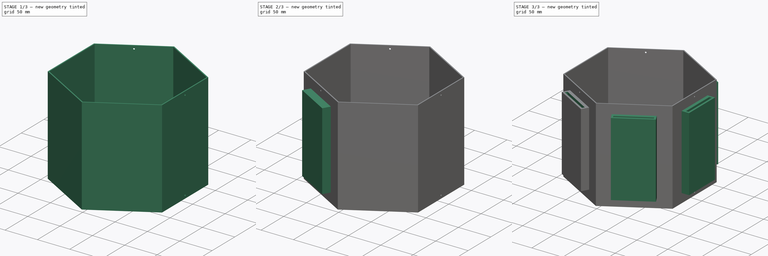
[diagram: build sequence overview — one tinted view per stage of 3, left to right]
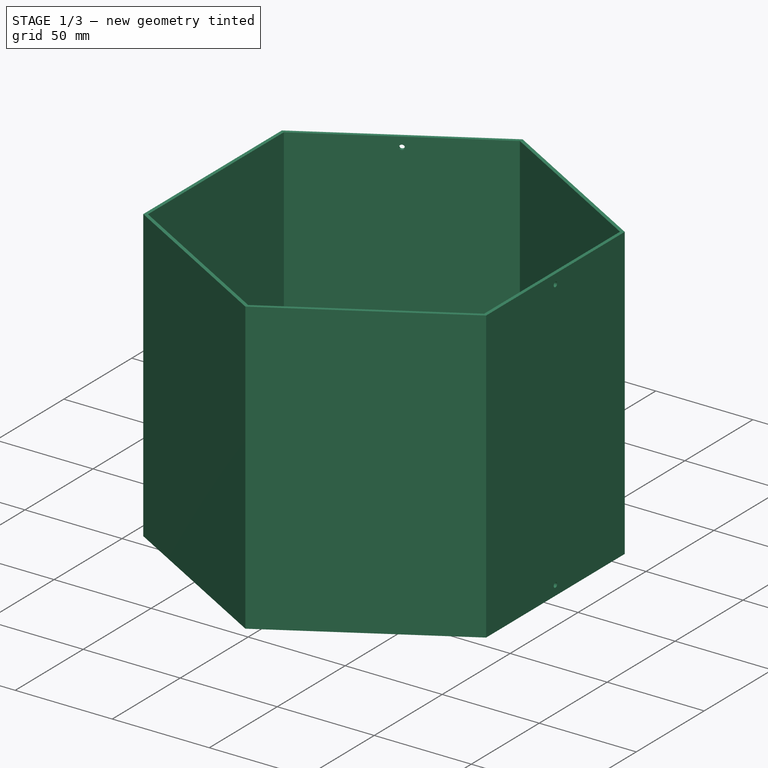
[diagram: stage 1 of 3 — iso view after this stage's code; geometry added in this stage tinted green]
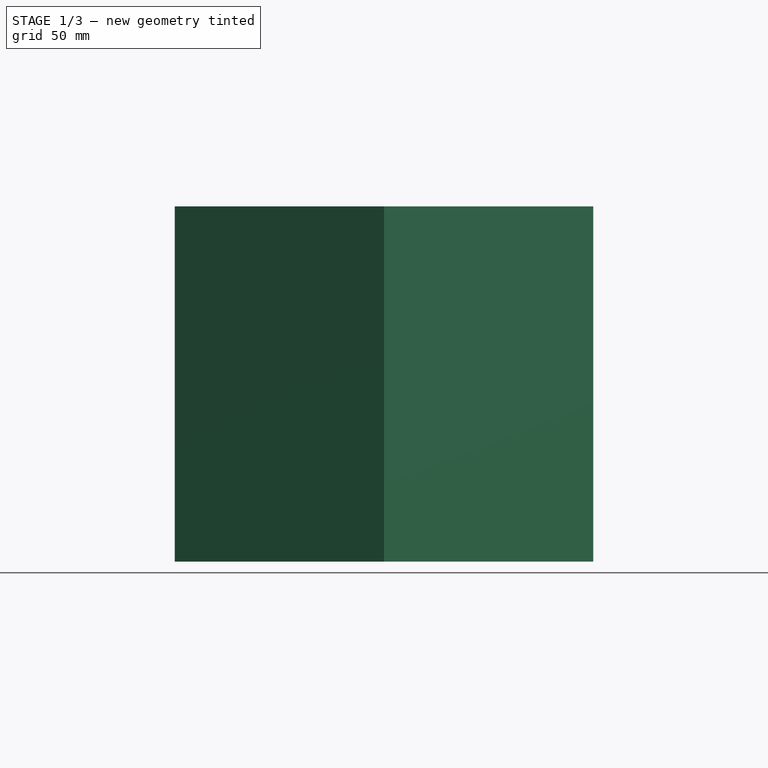
[diagram: stage 1 of 3 — front view after this stage's code; geometry added in this stage tinted green]
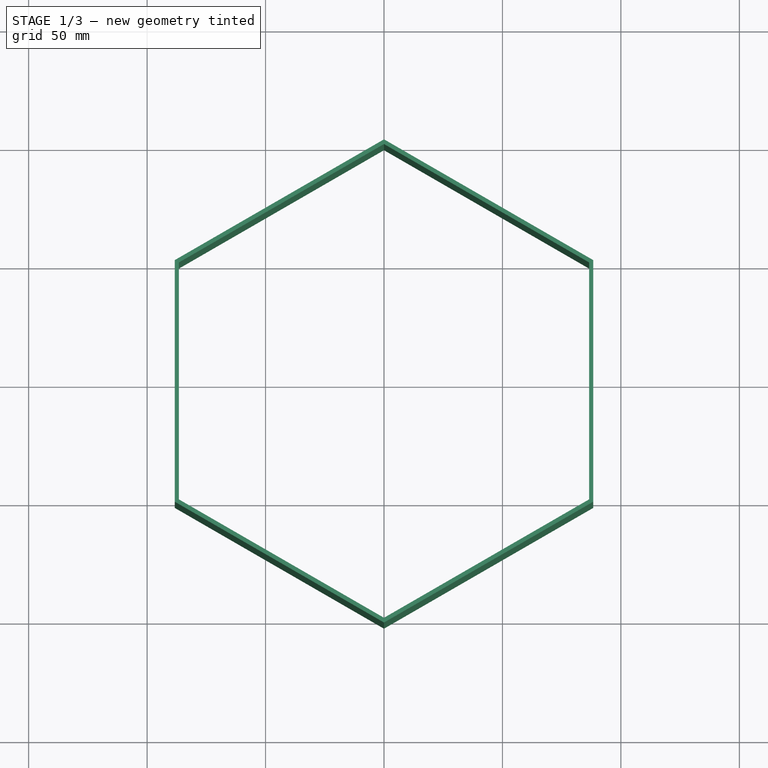
[diagram: stage 1 of 3 — top view after this stage's code; geometry added in this stage tinted green]
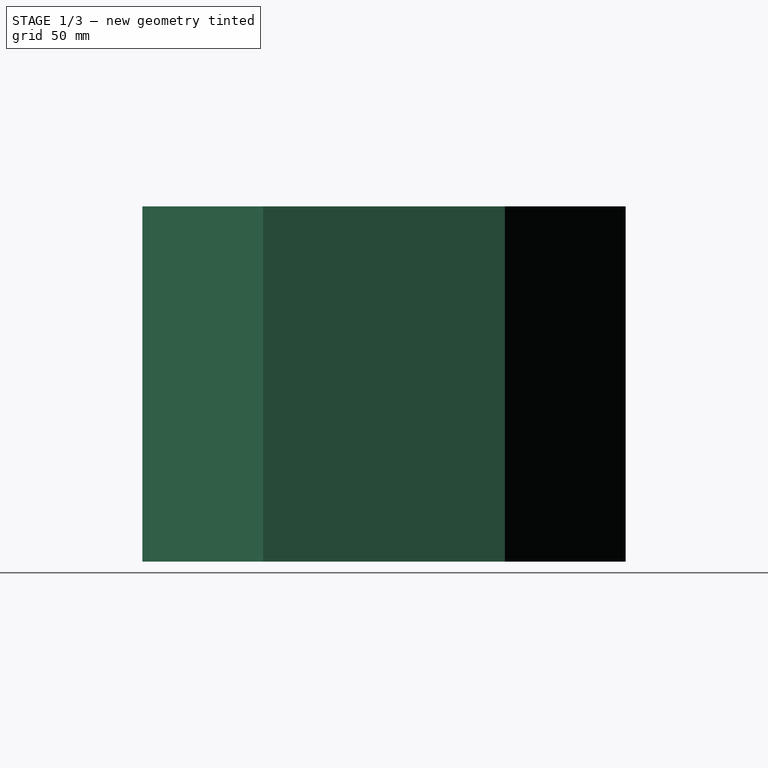
[diagram: stage 1 of 3 — right view after this stage's code; geometry added in this stage tinted green]
FCSTD DOCUMENT  (FreeCAD 0.20R29177 +426 (Git))
Label: classifier_middle
License: All rights reserved
LicenseURL: http://en.wikipedia.org/wiki/All_rights_reserved
objects: Sketcher::SketchObject×6, PartDesign::Hole×3, PartDesign::Pad×2, PartDesign::PolarPattern×2, App::MeasureDistance×1, PartDesign::Pocket×1, PartDesign::Body×1
note: 21 computed .brp shape members not serialized (recipe doc carries the construction recipe); baked Part::Feature solids carry a one-line shape summary decoded from their .brp

FEATURE [Sketcher::SketchObject] Sketch007
  FullyConstrained = true
  MapMode = 5
  sketch-geometry (14):
    g0: LineSegment StartX=86.6025 StartY=50 StartZ=0 EndX=-1.42e-14 EndY=100 EndZ=0
    g1: LineSegment StartX=-1.42e-14 StartY=100 StartZ=0 EndX=-86.6025 EndY=50 EndZ=0
    g2: LineSegment StartX=-86.6025 StartY=50 StartZ=0 EndX=-86.6025 EndY=-50 EndZ=0
    g3: LineSegment StartX=-86.6025 StartY=-50 StartZ=0 EndX=0 EndY=-100 EndZ=0
    g4: LineSegment StartX=0 StartY=-100 StartZ=0 EndX=86.6025 EndY=-50 EndZ=0
    g5: LineSegment StartX=86.6025 StartY=-50 StartZ=0 EndX=86.6025 EndY=50 EndZ=0
    g6: Circle CenterX=0 CenterY=0 CenterZ=0 NormalX=0 NormalY=0 NormalZ=1 AngleXU=0 Radius=100
    g7: LineSegment StartX=88.3346 StartY=51 StartZ=0 EndX=0 EndY=102 EndZ=0
    g8: LineSegment StartX=0 StartY=102 StartZ=0 EndX=-88.3346 EndY=51 EndZ=0
    g9: LineSegment StartX=-88.3346 StartY=51 StartZ=0 EndX=-88.3346 EndY=-51 EndZ=0
    g10: LineSegment StartX=-88.3346 StartY=-51 StartZ=0 EndX=0 EndY=-102 EndZ=0
    g11: LineSegment StartX=0 StartY=-102 StartZ=0 EndX=88.3346 EndY=-51 EndZ=0
    g12: LineSegment StartX=88.3346 StartY=-51 StartZ=0 EndX=88.3346 EndY=51 EndZ=0
    g13: Circle CenterX=0 CenterY=0 CenterZ=0 NormalX=0 NormalY=0 NormalZ=1 AngleXU=0 Radius=102
  constraints (32):
    c: Coincident(g0,g1)
    c: Coincident(g1,g2)
    c: Coincident(g2,g3)
    c: Coincident(g3,g4)
    c: Coincident(g4,g5)
    c: Coincident(g5,g0)
    c: Equal(g0, g1-g5) x5
    c: PointOnObject(g0,g6)
    c: PointOnObject(g1,g6)
    c: PointOnObject(g2,g6)
    c: PointOnObject(g3,g6)
    c: PointOnObject(g4,g6)
    c: PointOnObject(g5,g6)
    c: Coincident(g6,g-1)
    c: PointOnObject(g3,g-2)
    c: DistanceY(g5,g5) = 100
    c: Coincident(g7,g8)
    c: Coincident(g8,g9)
    c: Coincident(g9,g10)
    c: Coincident(g10,g11)
    c: Coincident(g11,g12)
    c: Coincident(g12,g7)
    c: Equal(g7, g8-g12) x5
    c: PointOnObject(g7,g13)
    c: PointOnObject(g8,g13)
    c: PointOnObject(g9,g13)
    c: PointOnObject(g10,g13)
    c: PointOnObject(g11,g13)
    c: PointOnObject(g12,g13)
    c: Coincident(g13,g6)
    c: Distance(g0,g7) = 2
    c: PointOnObject(g7,g-2)
FEATURE [PartDesign::Pad] Pad
  Direction = (0,0,1)
  Length = 150
  Length2 = 10
  Profile = -> Sketch007
  ReferenceAxis = -> Sketch007 [N_Axis]
  Type = 0
FEATURE [App::MeasureDistance] Distance  label="Distance: 4,99 mm"
  Distance = 4.98783
  P1 = (-26.0433,-97.0052,135)
  P2 = (-28.7858,-101.171,135)
FEATURE [Sketcher::SketchObject] Sketch
  ExternalGeometry = -> [Pad]
  FullyConstrained = true
  MapMode = 5
  Placement = pos=(88.3346,0,0) rot=(0.57735,0.57735,0.57735;2.0944rad)
  Support = -> [Pad]
  sketch-geometry (3):
    g0: Circle CenterX=0 CenterY=5 CenterZ=0 NormalX=0 NormalY=0 NormalZ=1 AngleXU=0 Radius=3
    g1: Circle CenterX=0 CenterY=145 CenterZ=0 NormalX=0 NormalY=0 NormalZ=1 AngleXU=0 Radius=3
    g2: GeomPoint X=0 Y=150 Z=0
  constraints (8):
    c: PointOnObject(g0,g-2)
    c: Diameter(g0) = 6
    c: DistanceY(g-1,g0) = 5
    c: Equal(g0,g1) = 6
    c: PointOnObject(g1,g-2)
    c: PointOnObject(g2,g-3)
    c: PointOnObject(g2,g-2)
    c: DistanceY(g1,g2) = 5
FEATURE [PartDesign::Hole] Hole
  BaseFeature = -> Pad
  CustomThreadClearance = 0
  Depth = 25
  DepthType = 0
  Diameter = 2.5
  DrillForDepth = false
  DrillPoint = 1
  DrillPointAngle = 118
  HoleCutCountersinkAngle = 90
  HoleCutCustomValues = false
  HoleCutDepth = 0
  HoleCutDiameter = 6.1
  HoleCutType = 0
  ModelThread = false
  Profile = -> Sketch
  Tapered = false
  TaperedAngle = 90
  ThreadClass = 0
  ThreadDepth = 25
  ThreadDepthType = 0
  ThreadDirection = 0
  ThreadFit = 0
  ThreadSize = 9
  ThreadType = 1
  Threaded = true
  UseCustomThreadClearance = false
FEATURE [Sketcher::SketchObject] Sketch009
  ExternalGeometry = -> [Pad]
  FullyConstrained = true
  MapMode = 5
  Placement = pos=(-44.1673,-76.5,0) rot=(0.935113,-0.250563,-0.250563;1.63783rad)
  Support = -> [Hole]
  sketch-geometry (3):
    g0: Circle CenterX=0 CenterY=5 CenterZ=0 NormalX=0 NormalY=0 NormalZ=1 AngleXU=0 Radius=3
    g1: Circle CenterX=0 CenterY=145 CenterZ=0 NormalX=0 NormalY=0 NormalZ=1 AngleXU=0 Radius=3
    g2: GeomPoint X=0 Y=150 Z=0
  constraints (8):
    c: PointOnObject(g0,g-2)
    c: Diameter(g0) = 6
    c: DistanceY(g-1,g0) = 5
    c: Equal(g0,g1) = 6
    c: PointOnObject(g1,g-2)
    c: PointOnObject(g2,g-3)
    c: PointOnObject(g2,g-2)
    c: DistanceY(g1,g2) = 5
FEATURE [Sketcher::SketchObject] Sketch008
  ExternalGeometry = -> [Pad]
  FullyConstrained = true
  MapMode = 5
  Placement = pos=(-44.1673,76.5,0) rot=(-0.186157,0.694747,0.694747;3.50969rad)
  Support = -> [Hole]
  sketch-geometry (3):
    g0: Circle CenterX=0 CenterY=5 CenterZ=0 NormalX=0 NormalY=0 NormalZ=1 AngleXU=0 Radius=3
    g1: Circle CenterX=0 CenterY=145 CenterZ=0 NormalX=0 NormalY=0 NormalZ=1 AngleXU=0 Radius=3
    g2: GeomPoint X=0 Y=150 Z=0
  constraints (8):
    c: PointOnObject(g0,g-2)
    c: Diameter(g0) = 6
    c: DistanceY(g-1,g0) = 5
    c: Equal(g0,g1) = 6
    c: PointOnObject(g1,g-2)
    c: PointOnObject(g2,g-3)
    c: PointOnObject(g2,g-2)
    c: DistanceY(g1,g2) = 5
FEATURE [PartDesign::Hole] Hole001
  BaseFeature = -> Hole
  CustomThreadClearance = 0
  Depth = 25
  DepthType = 0
  Diameter = 2.5
  DrillForDepth = false
  DrillPoint = 1
  DrillPointAngle = 118
  HoleCutCountersinkAngle = 90
  HoleCutCustomValues = false
  HoleCutDepth = 0
  HoleCutDiameter = 6.1
  HoleCutType = 0
  ModelThread = false
  Profile = -> Sketch008
  Tapered = false
  TaperedAngle = 90
  ThreadClass = 0
  ThreadDepth = 25
  ThreadDepthType = 0
  ThreadDirection = 0
  ThreadFit = 0
  ThreadSize = 9
  ThreadType = 1
  Threaded = true
  UseCustomThreadClearance = false
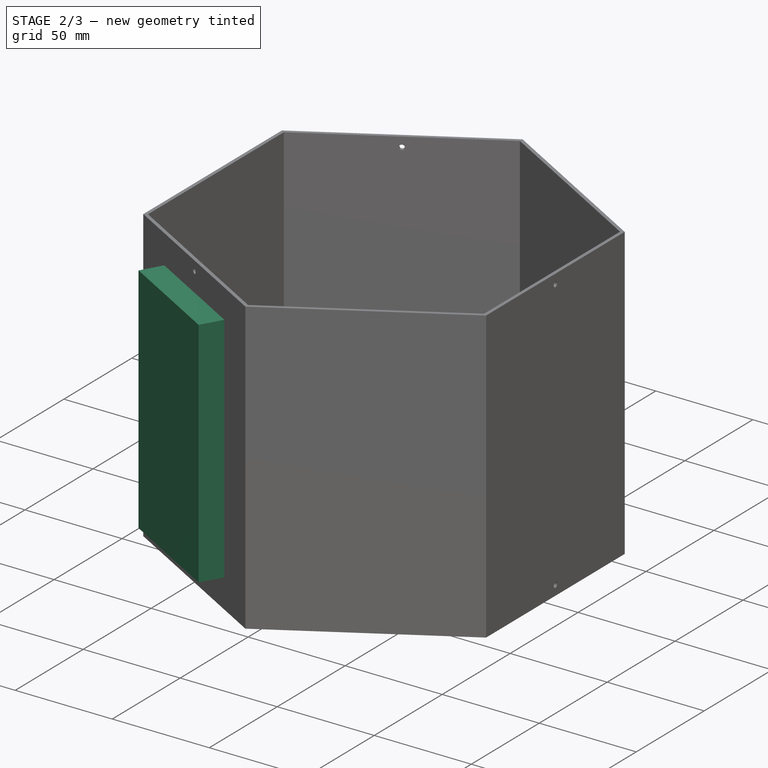
[diagram: stage 2 of 3 — iso view after this stage's code; geometry added in this stage tinted green]
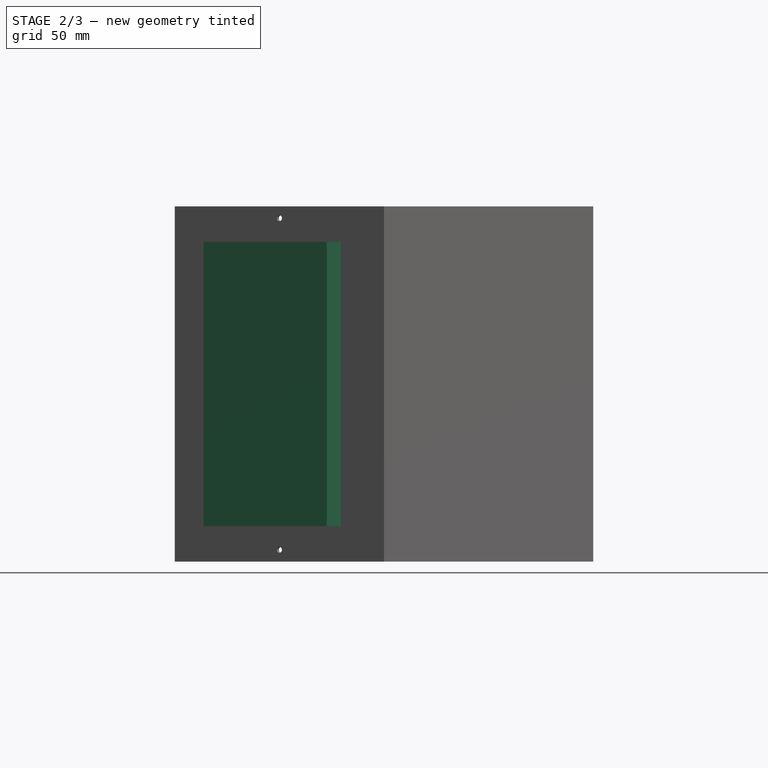
[diagram: stage 2 of 3 — front view after this stage's code; geometry added in this stage tinted green]
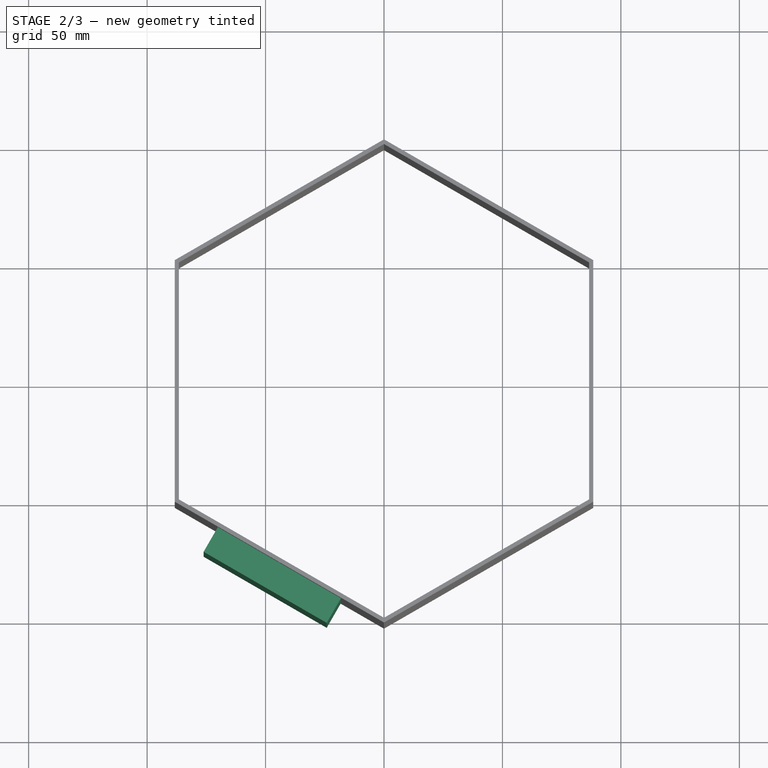
[diagram: stage 2 of 3 — top view after this stage's code; geometry added in this stage tinted green]
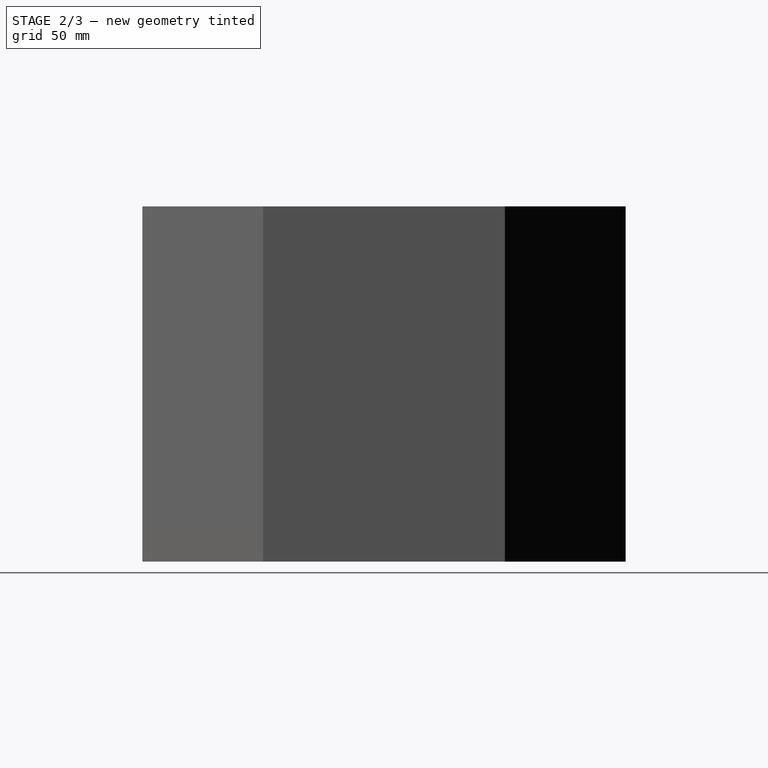
[diagram: stage 2 of 3 — right view after this stage's code; geometry added in this stage tinted green]
FEATURE [PartDesign::Hole] Hole002
  BaseFeature = -> Hole001
  CustomThreadClearance = 0
  Depth = 25
  DepthType = 0
  Diameter = 2.5
  DrillForDepth = false
  DrillPoint = 1
  DrillPointAngle = 118
  HoleCutCountersinkAngle = 90
  HoleCutCustomValues = false
  HoleCutDepth = 0
  HoleCutDiameter = 6.1
  HoleCutType = 0
  ModelThread = false
  Profile = -> Sketch009
  Tapered = false
  TaperedAngle = 90
  ThreadClass = 0
  ThreadDepth = 25
  ThreadDepthType = 0
  ThreadDirection = 0
  ThreadFit = 0
  ThreadSize = 9
  ThreadType = 1
  Threaded = true
  UseCustomThreadClearance = false
FEATURE [Sketcher::SketchObject] Sketch010
  ExternalGeometry = -> [Hole002]
  FullyConstrained = true
  MapMode = 5
  Placement = pos=(-44.1673,-76.5,0) rot=(0.935113,-0.250563,-0.250563;1.63783rad)
  Support = -> [Hole002]
  sketch-geometry (4):
    g0: LineSegment StartX=-30 StartY=135 StartZ=0 EndX=30 EndY=135 EndZ=0
    g1: LineSegment StartX=30 StartY=135 StartZ=0 EndX=30 EndY=15 EndZ=0
    g2: LineSegment StartX=30 StartY=15 StartZ=0 EndX=-30 EndY=15 EndZ=0
    g3: LineSegment StartX=-30 StartY=15 StartZ=0 EndX=-30 EndY=135 EndZ=0
  constraints (11):
    c: Coincident(g0,g1)
    c: Coincident(g1,g2)
    c: Coincident(g2,g3)
    c: Coincident(g3,g0)
    c: Horizontal(g2)
    c: Vertical(g1)
    c: Vertical(g3)
    c: Symmetric(g0,g0,g-2)
    c: DistanceX(g0,g0) = 60
    c: DistanceY(g-1,g1) = 15
    c: DistanceY(g1,g1) = 120
FEATURE [PartDesign::Pad] Pad001
  BaseFeature = -> Hole002
  Direction = (-0.5,-0.866025,-1e-16)
  Length = 12
  Length2 = 10
  Profile = -> Sketch010
  ReferenceAxis = -> Sketch010 [N_Axis]
  Type = 0
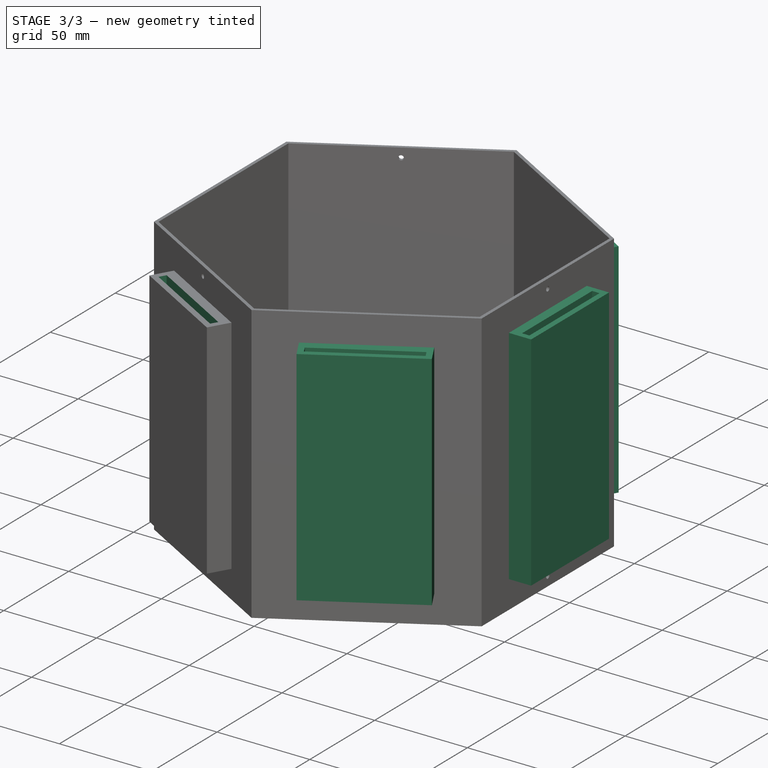
[diagram: stage 3 of 3 — iso view after this stage's code; geometry added in this stage tinted green]
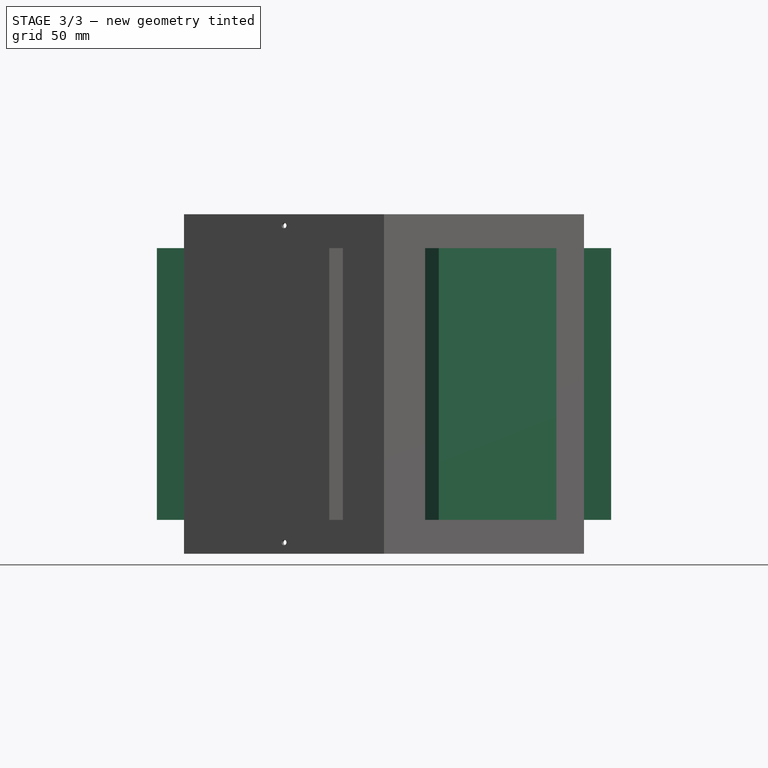
[diagram: stage 3 of 3 — front view after this stage's code; geometry added in this stage tinted green]
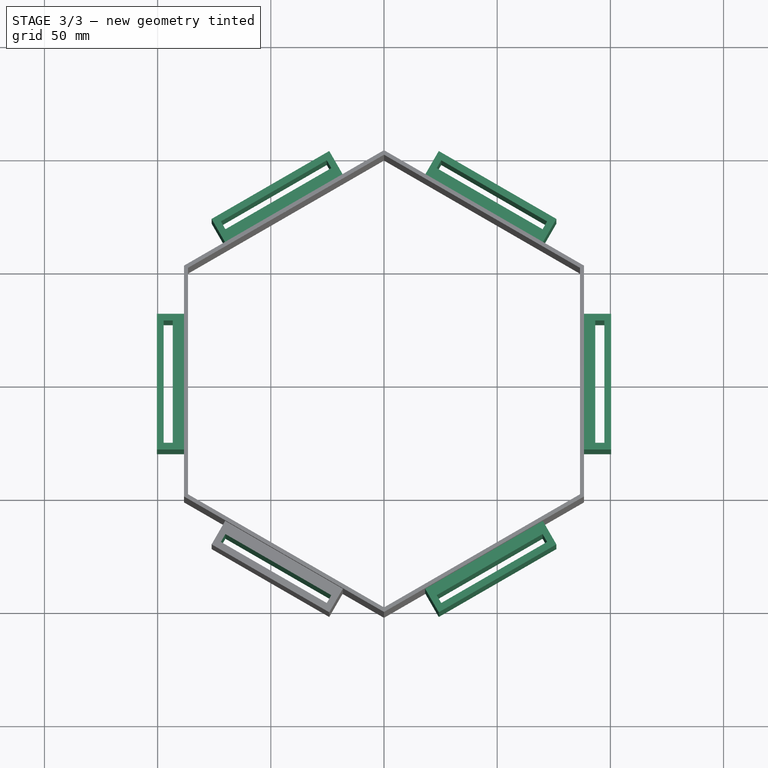
[diagram: stage 3 of 3 — top view after this stage's code; geometry added in this stage tinted green]
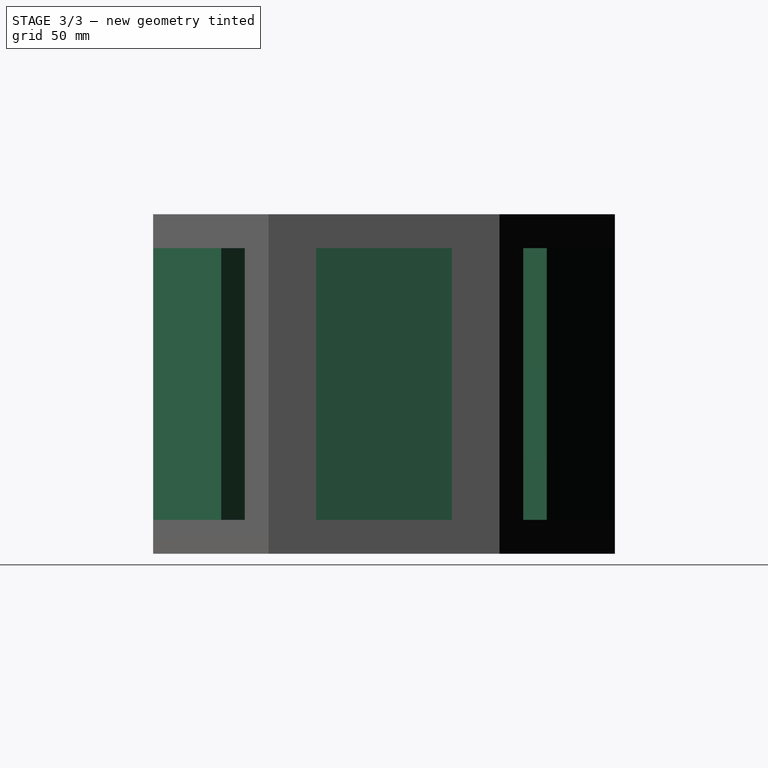
[diagram: stage 3 of 3 — right view after this stage's code; geometry added in this stage tinted green]
FEATURE [Sketcher::SketchObject] Sketch011
  ExternalGeometry = -> [Pad001]
  FullyConstrained = true
  MapMode = 5
  Placement = pos=(-8e-15,-1.38e-14,135) rot=(0,0,1;0rad)
  Support = -> [Pad001]
  sketch-geometry (10):
    g0: LineSegment StartX=-23.2846 StartY=-94.3301 StartZ=0 EndX=-70.05 EndY=-67.3302 EndZ=0
    g1: LineSegment StartX=-70.05 StartY=-67.3302 StartZ=0 EndX=-72.05 EndY=-70.7943 EndZ=0
    g2: LineSegment StartX=-72.05 StartY=-70.7943 StartZ=0 EndX=-25.2846 EndY=-97.7942 EndZ=0
    g3: LineSegment StartX=-25.2846 StartY=-97.7942 StartZ=0 EndX=-23.2846 EndY=-94.3301 EndZ=0
    g4: GeomPoint X=-26.7846 Y=-100.392 Z=0
    g5: GeomPoint X=-20.7846 Y=-90 Z=0
    g6: LineSegment StartX=-20.7846 StartY=-90 StartZ=0 EndX=-26.7846 EndY=-100.392 EndZ=0
    g7: GeomPoint X=-67.55 Y=-63 Z=0
    g8: GeomPoint X=-73.55 Y=-73.3923 Z=0
    g9: LineSegment StartX=-67.55 StartY=-63 StartZ=0 EndX=-73.55 EndY=-73.3923 EndZ=0
  constraints (26):
    c: PointOnObject(g4,g-5)
    c: Parallel(g3,g-4)
    c: Distance(g4,g-5) = 3
    c: Coincident(g3,g0)
    c: Coincident(g3,g2)
    c: PointOnObject(g5,g-6)
    c: Distance(g-6,g5) = 3
    c: Coincident(g6,g5)
    c: Coincident(g6,g4)
    c: PointOnObject(g2,g6)
    c: Coincident(g1,g2)
    c: Coincident(g0,g1)
    c: PointOnObject(g7,g-6)
    c: PointOnObject(g8,g-5)
    c: Distance(g8,g-5) = 3
    c: Distance(g7,g-6) = 3
    c: Coincident(g9,g7)
    c: Coincident(g9,g8)
    c: PointOnObject(g1,g9)
    c: PointOnObject(g0,g9)
    c: Equal(g3,g1)
    c: Distance(g0) = 54
    c: Distance(g4,g2) = 3
    c: Distance(g0,g2) = 4
    c: Distance(g-3) = 12
    c: Distance(g-5) = 60
FEATURE [PartDesign::PolarPattern] PolarPattern
  Angle = 360
  Axis = -> Z_Axis
  BaseFeature = -> Pad001
  Occurrences = 6
  Originals = -> [Pad001]
FEATURE [PartDesign::Pocket] Pocket
  BaseFeature = -> PolarPattern
  Direction = (1e-16,1e-16,-1)
  Length = 5
  Length2 = 5
  Profile = -> Sketch011
  ReferenceAxis = -> Sketch011 [N_Axis]
  Type = 1
FEATURE [PartDesign::PolarPattern] PolarPattern001
  Angle = 360
  Axis = -> Z_Axis
  BaseFeature = -> Pocket
  Occurrences = 6
  Originals = -> [Pocket]
FEATURE [PartDesign::Body] Body  label="classifier_middle"
  Group = -> [Sketch007,Pad,Sketch,Hole,Sketch008,Sketch009,Hole001,Hole002,Sketch010,Pad001,Sketch011,PolarPattern,Pocket,PolarPattern001]
  Origin = -> Origin
  Tip = -> PolarPattern001
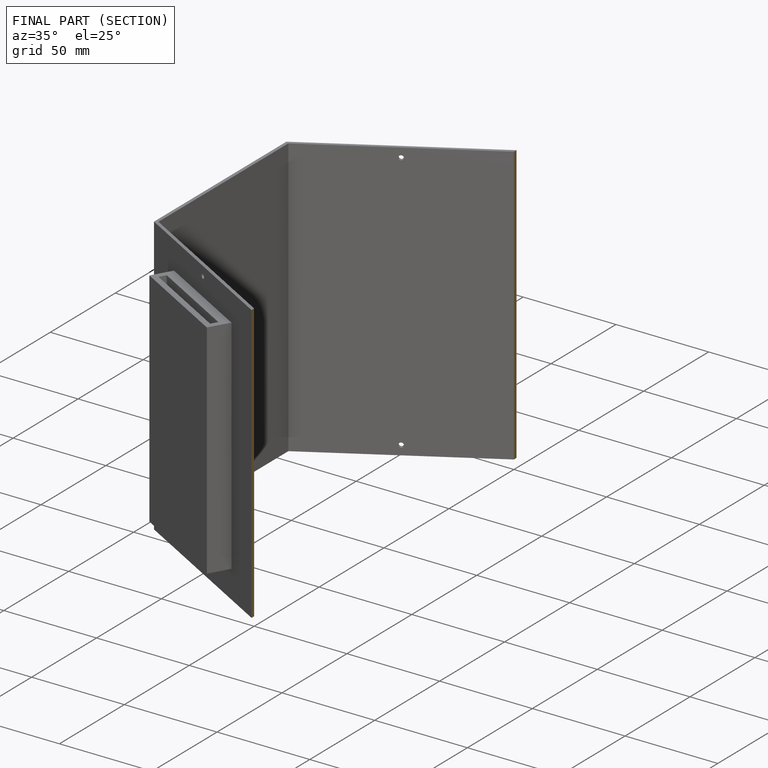
[diagram: finished part — half-section view (interior)]
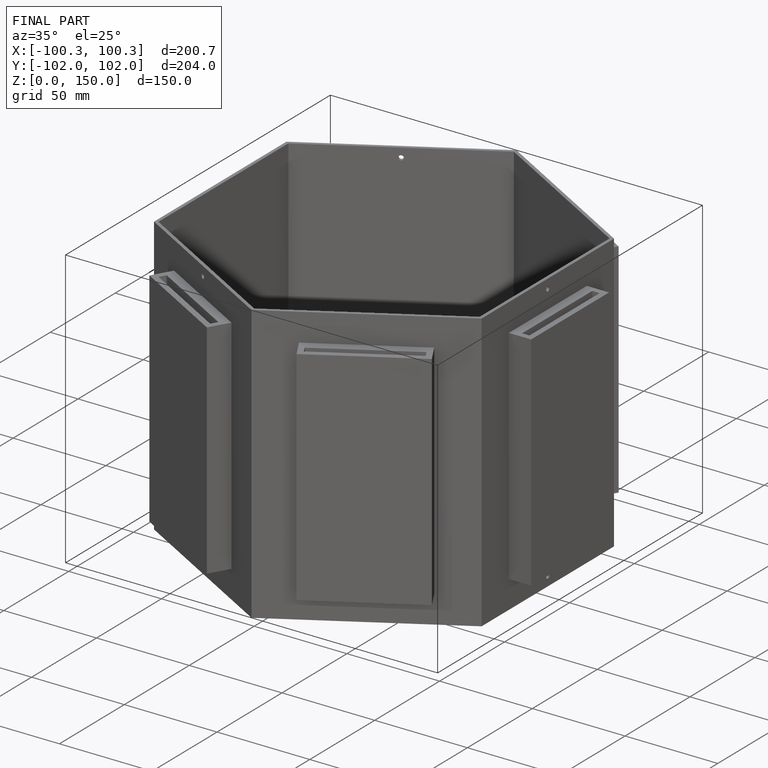
[diagram: finished part — iso view with bounding-box wireframe]
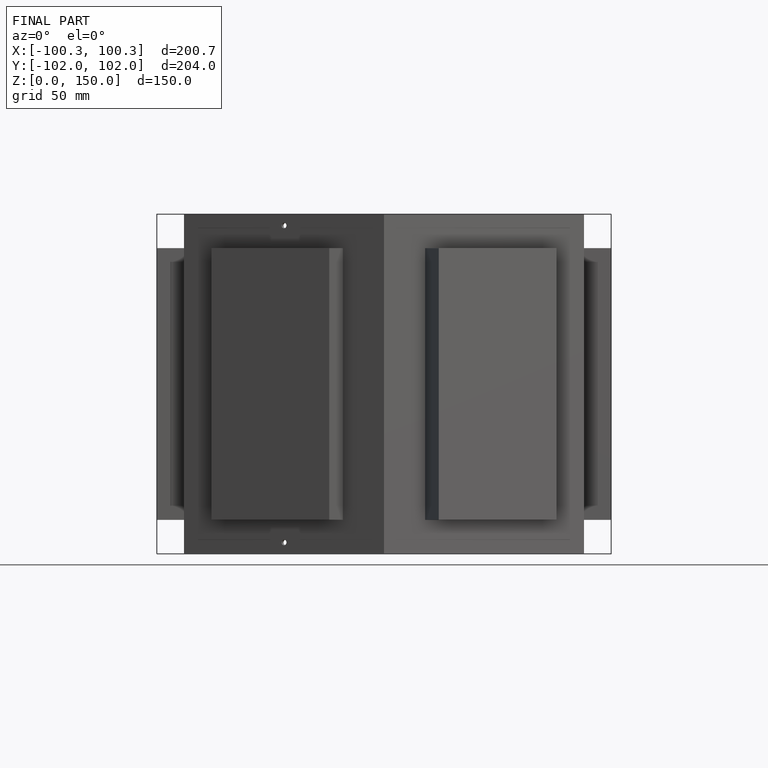
[diagram: finished part — front view with bounding-box wireframe]
